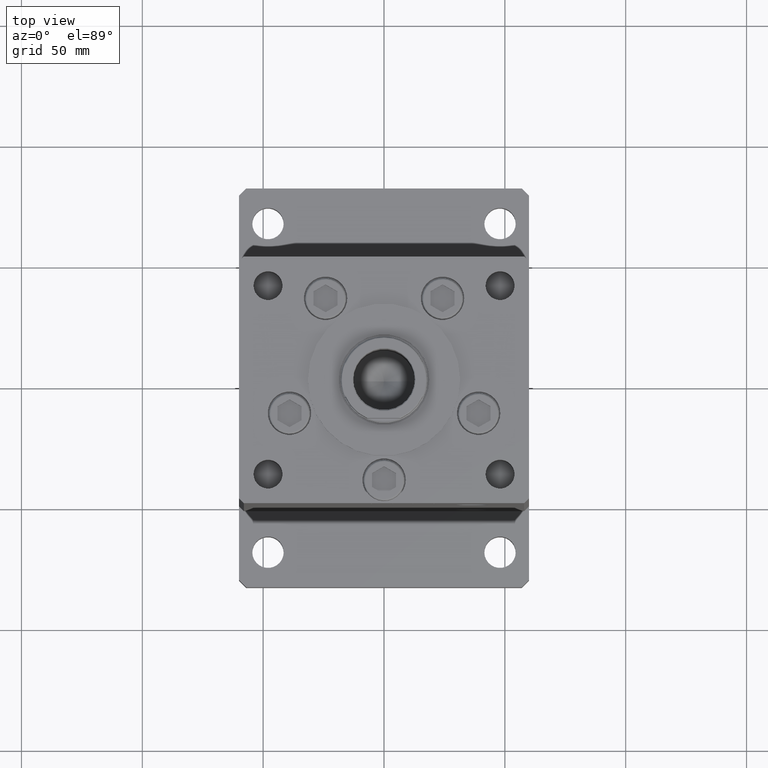
[diagram: clean part render]
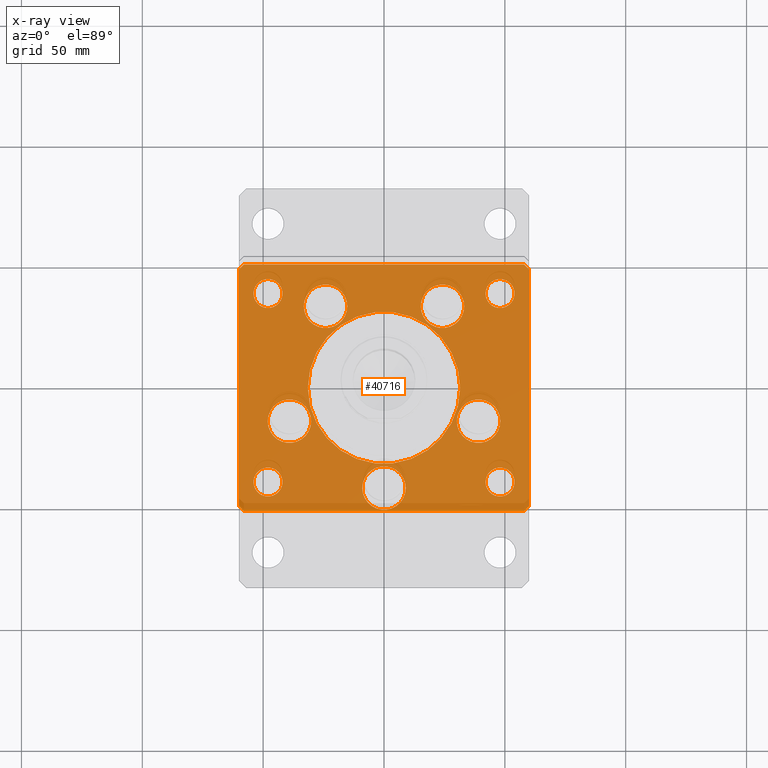
[diagram: x-ray — body ghosted, one internal face saturated and labeled with its STEP entity id]
A machine part, top view, then the same camera in x-ray: the body is ghosted and one INTERNAL B-rep face — a face not visible from any outside direction — is saturated and labeled: STEP entity #40716.
In plain terms, the highlighted planar face has unit normal (0, 0, -1).
Its self-contained STEP definition (entity closure, byte-faithful):
#104 = VERTEX_POINT ( 'NONE', #37410 ) ;
#158 = ORIENTED_EDGE ( 'NONE', *, *, #37085, .T. ) ;
#587 = FACE_BOUND ( 'NONE', #12778, .T. ) ;
#706 = LINE ( 'NONE', #16717, #48337 ) ;
#966 = DIRECTION ( 'NONE',  ( -1.000000000000000000, -2.392722035830079958E-16, 0.000000000000000000 ) ) ;
#1001 = CARTESIAN_POINT ( 'NONE',  ( 48.12657522565562829, -13.83333333333332682, 0.000000000000000000 ) ) ;
#1554 = CARTESIAN_POINT ( 'NONE',  ( 39.12657522565562829, -13.83333333333332860, 0.000000000000000000 ) ) ;
#1635 = FACE_BOUND ( 'NONE', #42883, .T. ) ;
#1720 = DIRECTION ( 'NONE',  ( 1.000000000000000000, 0.000000000000000000, 0.000000000000000000 ) ) ;
#2009 = DIRECTION ( 'NONE',  ( -0.000000000000000000, 0.000000000000000000, 1.000000000000000000 ) ) ;
#2040 = CIRCLE ( 'NONE', #48837, 9.000000000000001776 ) ;
#2055 = VERTEX_POINT ( 'NONE', #45909 ) ;
#2275 = DIRECTION ( 'NONE',  ( 0.000000000000000000, -0.000000000000000000, -1.000000000000000000 ) ) ;
#2346 = DIRECTION ( 'NONE',  ( 1.000000000000000000, 0.000000000000000000, 0.000000000000000000 ) ) ;
#2884 = DIRECTION ( 'NONE',  ( 1.000000000000000000, 0.000000000000000000, 0.000000000000000000 ) ) ;
#2919 = EDGE_CURVE ( 'NONE', #10217, #19971, #48376, .T. ) ;
#2977 = DIRECTION ( 'NONE',  ( 0.000000000000000000, -0.000000000000000000, -1.000000000000000000 ) ) ;
#3044 = AXIS2_PLACEMENT_3D ( 'NONE', #6355, #2009, #47843 ) ;
#3435 = CARTESIAN_POINT ( 'NONE',  ( 48.00000000000000000, -38.99999999999999289, 0.000000000000000000 ) ) ;
#3522 = CARTESIAN_POINT ( 'NONE',  ( -57.99999999999999289, 50.99999999999997868, 0.000000000000000000 ) ) ;
#3698 = ORIENTED_EDGE ( 'NONE', *, *, #43266, .T. ) ;
#3844 = EDGE_CURVE ( 'NONE', #43412, #26114, #13516, .T. ) ;
#3956 = EDGE_CURVE ( 'NONE', #53295, #31078, #7621, .T. ) ;
#4051 = EDGE_CURVE ( 'NONE', #38428, #28226, #33610, .T. ) ;
#4085 = EDGE_CURVE ( 'NONE', #11715, #43412, #706, .T. ) ;
#4119 = CARTESIAN_POINT ( 'NONE',  ( -60.00000000000000000, -49.00000000000000000, 0.000000000000000000 ) ) ;
#4159 = DIRECTION ( 'NONE',  ( 0.000000000000000000, 0.000000000000000000, 1.000000000000000000 ) ) ;
#4233 = LINE ( 'NONE', #20767, #6948 ) ;
#4964 = EDGE_CURVE ( 'NONE', #30408, #27799, #33653, .T. ) ;
#5125 = DIRECTION ( 'NONE',  ( 1.000000000000000000, 0.000000000000000000, 0.000000000000000000 ) ) ;
#5141 = AXIS2_PLACEMENT_3D ( 'NONE', #26683, #38634, #51670 ) ;
#5681 = VECTOR ( 'NONE', #35406, 1000.000000000000114 ) ;
#5780 = VERTEX_POINT ( 'NONE', #1001 ) ;
#5835 = CARTESIAN_POINT ( 'NONE',  ( 54.00000000000000711, -38.99999999999999289, 0.000000000000000000 ) ) ;
#6355 = CARTESIAN_POINT ( 'NONE',  ( 48.00000000000000000, 38.99999999999999289, 0.000000000000000000 ) ) ;
#6510 = FACE_BOUND ( 'NONE', #11869, .T. ) ;
#6948 = VECTOR ( 'NONE', #37294, 1000.000000000000000 ) ;
#6963 = DIRECTION ( 'NONE',  ( 0.000000000000000000, -0.000000000000000000, -1.000000000000000000 ) ) ;
#7223 = DIRECTION ( 'NONE',  ( -0.7071067811865487940, 0.7071067811865463515, 0.000000000000000000 ) ) ;
#7312 = DIRECTION ( 'NONE',  ( 0.000000000000000000, -0.000000000000000000, -1.000000000000000000 ) ) ;
#7321 = CIRCLE ( 'NONE', #15120, 9.000000000000000000 ) ;
#7389 = CIRCLE ( 'NONE', #52434, 6.000000000000005329 ) ;
#7511 = DIRECTION ( 'NONE',  ( 1.000000000000000000, 0.000000000000000000, 0.000000000000000000 ) ) ;
#7556 = ORIENTED_EDGE ( 'NONE', *, *, #39757, .T. ) ;
#7621 = CIRCLE ( 'NONE', #41387, 6.000000000000005329 ) ;
#7969 = DIRECTION ( 'NONE',  ( 1.000000000000000000, 1.196361017915039486E-16, 0.000000000000000000 ) ) ;
#8150 = ORIENTED_EDGE ( 'NONE', *, *, #4051, .T. ) ;
#8528 = VECTOR ( 'NONE', #38419, 1000.000000000000114 ) ;
#8619 = DIRECTION ( 'NONE',  ( -0.000000000000000000, 0.000000000000000000, 1.000000000000000000 ) ) ;
#8715 = ORIENTED_EDGE ( 'NONE', *, *, #52552, .F. ) ;
#8721 = ORIENTED_EDGE ( 'NONE', *, *, #14493, .T. ) ;
#8815 = CARTESIAN_POINT ( 'NONE',  ( -60.00000000000000000, 48.99999999999995737, 0.000000000000000000 ) ) ;
#8876 = CIRCLE ( 'NONE', #28728, 9.000000000000001776 ) ;
#8909 = ORIENTED_EDGE ( 'NONE', *, *, #27723, .T. ) ;
#8971 = CIRCLE ( 'NONE', #20216, 9.000000000000001776 ) ;
#9741 = EDGE_CURVE ( 'NONE', #11596, #37071, #41120, .T. ) ;
#10217 = VERTEX_POINT ( 'NONE', #18246 ) ;
#10309 = DIRECTION ( 'NONE',  ( 0.000000000000000000, -0.000000000000000000, -1.000000000000000000 ) ) ;
#10399 = ORIENTED_EDGE ( 'NONE', *, *, #14430, .T. ) ;
#10598 = CARTESIAN_POINT ( 'NONE',  ( 9.000000000000005329, -41.50000000000000000, 0.000000000000000000 ) ) ;
#10685 = CARTESIAN_POINT ( 'NONE',  ( 54.00000000000000711, 38.99999999999999289, 0.000000000000000000 ) ) ;
#10845 = VERTEX_POINT ( 'NONE', #19797 ) ;
#10985 = VERTEX_POINT ( 'NONE', #52281 ) ;
#11296 = CARTESIAN_POINT ( 'NONE',  ( 59.99999999999994316, 49.00000000000000000, 0.000000000000000000 ) ) ;
#11396 = FACE_BOUND ( 'NONE', #27846, .T. ) ;
#11596 = VERTEX_POINT ( 'NONE', #31169 ) ;
#11715 = VERTEX_POINT ( 'NONE', #46100 ) ;
#11869 = EDGE_LOOP ( 'NONE', ( #16860, #42032 ) ) ;
#12081 = VECTOR ( 'NONE', #19623, 1000.000000000000000 ) ;
#12718 = AXIS2_PLACEMENT_3D ( 'NONE', #34787, #42679, #38846 ) ;
#12778 = EDGE_LOOP ( 'NONE', ( #50511, #37159 ) ) ;
#13516 = LINE ( 'NONE', #30018, #8528 ) ;
#13698 = VERTEX_POINT ( 'NONE', #10598 ) ;
#13997 = AXIS2_PLACEMENT_3D ( 'NONE', #39681, #2275, #19093 ) ;
#14430 = EDGE_CURVE ( 'NONE', #10985, #19899, #36042, .T. ) ;
#14493 = EDGE_CURVE ( 'NONE', #5780, #2055, #41319, .T. ) ;
#14573 = AXIS2_PLACEMENT_3D ( 'NONE', #37597, #8619, #20264 ) ;
#14919 = PLANE ( 'NONE',  #15111 ) ;
#15111 = AXIS2_PLACEMENT_3D ( 'NONE', #39565, #18439, #51793 ) ;
#15120 = AXIS2_PLACEMENT_3D ( 'NONE', #41787, #29044, #41526 ) ;
#15218 = ORIENTED_EDGE ( 'NONE', *, *, #38747, .T. ) ;
#15239 = EDGE_CURVE ( 'NONE', #19971, #11715, #52232, .T. ) ;
#15324 = AXIS2_PLACEMENT_3D ( 'NONE', #22314, #18525, #1720 ) ;
#15442 = CARTESIAN_POINT ( 'NONE',  ( -54.00000000000000711, 39.00000000000000000, 0.000000000000000000 ) ) ;
#15517 = CIRCLE ( 'NONE', #37179, 31.50000000000000000 ) ;
#15643 = DIRECTION ( 'NONE',  ( 0.000000000000000000, -0.000000000000000000, -1.000000000000000000 ) ) ;
#16612 = ORIENTED_EDGE ( 'NONE', *, *, #2919, .T. ) ;
#16717 = CARTESIAN_POINT ( 'NONE',  ( 57.99999999999993605, 51.00000000000000711, 0.000000000000000000 ) ) ;
#16748 = EDGE_CURVE ( 'NONE', #22616, #45711, #28536, .T. ) ;
#16860 = ORIENTED_EDGE ( 'NONE', *, *, #3956, .T. ) ;
#17109 = VERTEX_POINT ( 'NONE', #49326 ) ;
#17152 = ORIENTED_EDGE ( 'NONE', *, *, #52335, .T. ) ;
#18180 = FACE_BOUND ( 'NONE', #38953, .T. ) ;
#18246 = CARTESIAN_POINT ( 'NONE',  ( 60.00000000000001421, -48.99999999999999289, 0.000000000000000000 ) ) ;
#18439 = DIRECTION ( 'NONE',  ( -0.000000000000000000, 0.000000000000000000, 1.000000000000000000 ) ) ;
#18525 = DIRECTION ( 'NONE',  ( 0.000000000000000000, -0.000000000000000000, -1.000000000000000000 ) ) ;
#18679 = EDGE_CURVE ( 'NONE', #10845, #28249, #34498, .T. ) ;
#19093 = DIRECTION ( 'NONE',  ( 1.000000000000000000, 0.000000000000000000, 0.000000000000000000 ) ) ;
#19261 = ORIENTED_EDGE ( 'NONE', *, *, #37754, .T. ) ;
#19623 = DIRECTION ( 'NONE',  ( -7.080503983578803823E-16, 1.000000000000000000, 0.000000000000000000 ) ) ;
#19797 = CARTESIAN_POINT ( 'NONE',  ( -31.50000000000000000, -1.002015039050029328E-14, 0.000000000000000000 ) ) ;
#19824 = ORIENTED_EDGE ( 'NONE', *, *, #49795, .T. ) ;
#19899 = VERTEX_POINT ( 'NONE', #50996 ) ;
#19971 = VERTEX_POINT ( 'NONE', #37701 ) ;
#20216 = AXIS2_PLACEMENT_3D ( 'NONE', #48533, #7312, #23817 ) ;
#20264 = DIRECTION ( 'NONE',  ( 1.000000000000000000, 0.000000000000000000, 0.000000000000000000 ) ) ;
#20522 = DIRECTION ( 'NONE',  ( 0.7071067811865474617, 0.7071067811865474617, 0.000000000000000000 ) ) ;
#20611 = AXIS2_PLACEMENT_3D ( 'NONE', #52792, #15643, #48728 ) ;
#20619 = EDGE_CURVE ( 'NONE', #28249, #10845, #15517, .T. ) ;
#20694 = DIRECTION ( 'NONE',  ( 1.000000000000000000, 0.000000000000000000, 0.000000000000000000 ) ) ;
#20767 = CARTESIAN_POINT ( 'NONE',  ( -60.00000000000000000, 48.99999999999995737, 0.000000000000000000 ) ) ;
#20921 = CIRCLE ( 'NONE', #13997, 9.000000000000000000 ) ;
#20979 = DIRECTION ( 'NONE',  ( 0.000000000000000000, 0.000000000000000000, 1.000000000000000000 ) ) ;
#21027 = DIRECTION ( 'NONE',  ( 1.000000000000000000, 0.000000000000000000, 0.000000000000000000 ) ) ;
#21602 = EDGE_CURVE ( 'NONE', #37071, #11596, #49322, .T. ) ;
#22157 = DIRECTION ( 'NONE',  ( 0.000000000000000000, -0.000000000000000000, -1.000000000000000000 ) ) ;
#22314 = CARTESIAN_POINT ( 'NONE',  ( 39.12657522565562829, -13.83333333333332860, 0.000000000000000000 ) ) ;
#22616 = VERTEX_POINT ( 'NONE', #49495 ) ;
#22684 = CARTESIAN_POINT ( 'NONE',  ( 5.082284216461515748E-15, -41.50000000000000000, 0.000000000000000000 ) ) ;
#22891 = CIRCLE ( 'NONE', #32430, 6.000000000000005329 ) ;
#23024 = FACE_BOUND ( 'NONE', #31315, .T. ) ;
#23360 = DIRECTION ( 'NONE',  ( 1.000000000000000000, 0.000000000000000000, 0.000000000000000000 ) ) ;
#23817 = DIRECTION ( 'NONE',  ( 1.000000000000000000, 0.000000000000000000, 0.000000000000000000 ) ) ;
#23893 = CARTESIAN_POINT ( 'NONE',  ( -39.12657522565562829, -13.83333333333333925, 0.000000000000000000 ) ) ;
#23999 = ORIENTED_EDGE ( 'NONE', *, *, #31112, .T. ) ;
#24145 = ORIENTED_EDGE ( 'NONE', *, *, #16748, .T. ) ;
#24285 = DIRECTION ( 'NONE',  ( 0.000000000000000000, -0.000000000000000000, -1.000000000000000000 ) ) ;
#24508 = AXIS2_PLACEMENT_3D ( 'NONE', #1554, #22157, #2346 ) ;
#24629 = ORIENTED_EDGE ( 'NONE', *, *, #9741, .F. ) ;
#25552 = AXIS2_PLACEMENT_3D ( 'NONE', #46780, #37822, #21027 ) ;
#25604 = CARTESIAN_POINT ( 'NONE',  ( 41.99999999999999289, 38.99999999999999289, 0.000000000000000000 ) ) ;
#26114 = VERTEX_POINT ( 'NONE', #8815 ) ;
#26221 = AXIS2_PLACEMENT_3D ( 'NONE', #49079, #2977, #44727 ) ;
#26550 = DIRECTION ( 'NONE',  ( 1.000000000000000000, 0.000000000000000000, 0.000000000000000000 ) ) ;
#26683 = CARTESIAN_POINT ( 'NONE',  ( -48.00000000000000000, 39.00000000000000000, 0.000000000000000000 ) ) ;
#27077 = FACE_BOUND ( 'NONE', #51245, .T. ) ;
#27140 = CIRCLE ( 'NONE', #52270, 9.000000000000000000 ) ;
#27551 = DIRECTION ( 'NONE',  ( 0.000000000000000000, -0.000000000000000000, -1.000000000000000000 ) ) ;
#27723 = EDGE_CURVE ( 'NONE', #26114, #43163, #4233, .T. ) ;
#27799 = VERTEX_POINT ( 'NONE', #25604 ) ;
#27846 = EDGE_LOOP ( 'NONE', ( #24629, #52636 ) ) ;
#27932 = ORIENTED_EDGE ( 'NONE', *, *, #52267, .T. ) ;
#27990 = CARTESIAN_POINT ( 'NONE',  ( -57.99999999999997868, -51.00000000000001421, 0.000000000000000000 ) ) ;
#28226 = VERTEX_POINT ( 'NONE', #30078 ) ;
#28249 = VERTEX_POINT ( 'NONE', #43896 ) ;
#28286 = CARTESIAN_POINT ( 'NONE',  ( -48.12657522565562829, -13.83333333333333925, 0.000000000000000000 ) ) ;
#28293 = CARTESIAN_POINT ( 'NONE',  ( -15.19288941894912170, 33.71875000000000000, 0.000000000000000000 ) ) ;
#28536 = LINE ( 'NONE', #27990, #40446 ) ;
#28728 = AXIS2_PLACEMENT_3D ( 'NONE', #43916, #10309, #26550 ) ;
#29044 = DIRECTION ( 'NONE',  ( 0.000000000000000000, -0.000000000000000000, -1.000000000000000000 ) ) ;
#30018 = CARTESIAN_POINT ( 'NONE',  ( -57.99999999999999289, 50.99999999999997868, 0.000000000000000000 ) ) ;
#30039 = DIRECTION ( 'NONE',  ( 0.000000000000000000, -0.000000000000000000, -1.000000000000000000 ) ) ;
#30078 = CARTESIAN_POINT ( 'NONE',  ( -33.19288941894912170, 33.71875000000000000, 0.000000000000000000 ) ) ;
#30408 = VERTEX_POINT ( 'NONE', #10685 ) ;
#30638 = VECTOR ( 'NONE', #20522, 1000.000000000000114 ) ;
#31078 = VERTEX_POINT ( 'NONE', #47844 ) ;
#31112 = EDGE_CURVE ( 'NONE', #28226, #38428, #20921, .T. ) ;
#31169 = CARTESIAN_POINT ( 'NONE',  ( -41.99999999999999289, 39.00000000000000000, 0.000000000000000000 ) ) ;
#31315 = EDGE_LOOP ( 'NONE', ( #158, #53196 ) ) ;
#31700 = FACE_BOUND ( 'NONE', #34817, .T. ) ;
#32430 = AXIS2_PLACEMENT_3D ( 'NONE', #42793, #30039, #5125 ) ;
#33345 = CIRCLE ( 'NONE', #3044, 6.000000000000005329 ) ;
#33610 = CIRCLE ( 'NONE', #20611, 9.000000000000000000 ) ;
#33653 = CIRCLE ( 'NONE', #14573, 6.000000000000005329 ) ;
#34498 = CIRCLE ( 'NONE', #35337, 31.50000000000000000 ) ;
#34733 = ORIENTED_EDGE ( 'NONE', *, *, #4964, .F. ) ;
#34748 = CARTESIAN_POINT ( 'NONE',  ( 58.00000000000000000, -51.00000000000000711, 0.000000000000000000 ) ) ;
#34787 = CARTESIAN_POINT ( 'NONE',  ( 24.19288941894911460, 33.71875000000000711, 0.000000000000000000 ) ) ;
#34817 = EDGE_LOOP ( 'NONE', ( #19824, #15218 ) ) ;
#35337 = AXIS2_PLACEMENT_3D ( 'NONE', #44287, #4159, #20694 ) ;
#35351 = CARTESIAN_POINT ( 'NONE',  ( -30.12657522565562829, -13.83333333333333748, 0.000000000000000000 ) ) ;
#35406 = DIRECTION ( 'NONE',  ( 0.7071067811865474617, -0.7071067811865474617, 0.000000000000000000 ) ) ;
#36042 = CIRCLE ( 'NONE', #12718, 9.000000000000001776 ) ;
#36432 = DIRECTION ( 'NONE',  ( 1.000000000000000000, 0.000000000000000000, 0.000000000000000000 ) ) ;
#36801 = EDGE_LOOP ( 'NONE', ( #17152, #24145, #7556, #16612, #46709, #37201, #44450, #8909 ) ) ;
#37071 = VERTEX_POINT ( 'NONE', #15442 ) ;
#37085 = EDGE_CURVE ( 'NONE', #46580, #47640, #8971, .T. ) ;
#37159 = ORIENTED_EDGE ( 'NONE', *, *, #18679, .F. ) ;
#37179 = AXIS2_PLACEMENT_3D ( 'NONE', #49206, #20979, #36432 ) ;
#37201 = ORIENTED_EDGE ( 'NONE', *, *, #4085, .T. ) ;
#37294 = DIRECTION ( 'NONE',  ( 0.000000000000000000, -1.000000000000000000, 0.000000000000000000 ) ) ;
#37410 = CARTESIAN_POINT ( 'NONE',  ( -41.99999999999999289, -39.00000000000000000, 0.000000000000000000 ) ) ;
#37597 = CARTESIAN_POINT ( 'NONE',  ( 48.00000000000000000, 38.99999999999999289, 0.000000000000000000 ) ) ;
#37701 = CARTESIAN_POINT ( 'NONE',  ( 59.99999999999994316, 49.00000000000000000, 0.000000000000000000 ) ) ;
#37754 = EDGE_CURVE ( 'NONE', #17109, #104, #45312, .T. ) ;
#37822 = DIRECTION ( 'NONE',  ( -0.000000000000000000, 0.000000000000000000, 1.000000000000000000 ) ) ;
#38419 = DIRECTION ( 'NONE',  ( -0.7071067811865451302, -0.7071067811865500152, 0.000000000000000000 ) ) ;
#38428 = VERTEX_POINT ( 'NONE', #28293 ) ;
#38597 = EDGE_CURVE ( 'NONE', #47640, #46580, #2040, .T. ) ;
#38634 = DIRECTION ( 'NONE',  ( -0.000000000000000000, 0.000000000000000000, 1.000000000000000000 ) ) ;
#38747 = EDGE_CURVE ( 'NONE', #13698, #45437, #27140, .T. ) ;
#38846 = DIRECTION ( 'NONE',  ( 1.000000000000000000, 0.000000000000000000, 0.000000000000000000 ) ) ;
#38953 = EDGE_LOOP ( 'NONE', ( #3698, #10399 ) ) ;
#39565 = CARTESIAN_POINT ( 'NONE',  ( 0.000000000000000000, 0.000000000000000000, 0.000000000000000000 ) ) ;
#39681 = CARTESIAN_POINT ( 'NONE',  ( -24.19288941894912170, 33.71875000000000000, 0.000000000000000000 ) ) ;
#39757 = EDGE_CURVE ( 'NONE', #45711, #10217, #48744, .T. ) ;
#39900 = DIRECTION ( 'NONE',  ( 0.000000000000000000, -0.000000000000000000, -1.000000000000000000 ) ) ;
#40446 = VECTOR ( 'NONE', #7969, 1000.000000000000000 ) ;
#40716 = ADVANCED_FACE ( 'NONE', ( #587, #1635, #18180, #43645, #31700, #23024, #27077, #6510, #11396, #52609, #48552 ), #14919, .T. ) ;
#40915 = EDGE_CURVE ( 'NONE', #31078, #53295, #22891, .T. ) ;
#41120 = CIRCLE ( 'NONE', #25552, 6.000000000000005329 ) ;
#41319 = CIRCLE ( 'NONE', #15324, 9.000000000000001776 ) ;
#41387 = AXIS2_PLACEMENT_3D ( 'NONE', #3435, #24285, #7511 ) ;
#41526 = DIRECTION ( 'NONE',  ( 1.000000000000000000, 0.000000000000000000, 0.000000000000000000 ) ) ;
#41787 = CARTESIAN_POINT ( 'NONE',  ( 5.082284216461515748E-15, -41.50000000000000000, 0.000000000000000000 ) ) ;
#42032 = ORIENTED_EDGE ( 'NONE', *, *, #40915, .T. ) ;
#42458 = EDGE_LOOP ( 'NONE', ( #27932, #19261 ) ) ;
#42679 = DIRECTION ( 'NONE',  ( 0.000000000000000000, -0.000000000000000000, -1.000000000000000000 ) ) ;
#42793 = CARTESIAN_POINT ( 'NONE',  ( 48.00000000000000000, -38.99999999999999289, 0.000000000000000000 ) ) ;
#42883 = EDGE_LOOP ( 'NONE', ( #23999, #8150 ) ) ;
#43163 = VERTEX_POINT ( 'NONE', #4119 ) ;
#43266 = EDGE_CURVE ( 'NONE', #19899, #10985, #8876, .T. ) ;
#43412 = VERTEX_POINT ( 'NONE', #3522 ) ;
#43558 = ORIENTED_EDGE ( 'NONE', *, *, #46279, .T. ) ;
#43645 = FACE_BOUND ( 'NONE', #49304, .T. ) ;
#43896 = CARTESIAN_POINT ( 'NONE',  ( 31.50000000000000000, -1.387778780781445676E-14, 0.000000000000000000 ) ) ;
#43916 = CARTESIAN_POINT ( 'NONE',  ( 24.19288941894911460, 33.71875000000000711, 0.000000000000000000 ) ) ;
#44122 = DIRECTION ( 'NONE',  ( 1.000000000000000000, 0.000000000000000000, 0.000000000000000000 ) ) ;
#44287 = CARTESIAN_POINT ( 'NONE',  ( 0.000000000000000000, -1.387778780781445676E-14, 0.000000000000000000 ) ) ;
#44450 = ORIENTED_EDGE ( 'NONE', *, *, #3844, .T. ) ;
#44727 = DIRECTION ( 'NONE',  ( 1.000000000000000000, 0.000000000000000000, 0.000000000000000000 ) ) ;
#45312 = CIRCLE ( 'NONE', #26221, 6.000000000000005329 ) ;
#45437 = VERTEX_POINT ( 'NONE', #49327 ) ;
#45711 = VERTEX_POINT ( 'NONE', #34748 ) ;
#45909 = CARTESIAN_POINT ( 'NONE',  ( 30.12657522565562829, -13.83333333333332860, 0.000000000000000000 ) ) ;
#46100 = CARTESIAN_POINT ( 'NONE',  ( 57.99999999999993605, 51.00000000000000711, 0.000000000000000000 ) ) ;
#46279 = EDGE_CURVE ( 'NONE', #2055, #5780, #51350, .T. ) ;
#46580 = VERTEX_POINT ( 'NONE', #28286 ) ;
#46709 = ORIENTED_EDGE ( 'NONE', *, *, #15239, .T. ) ;
#46780 = CARTESIAN_POINT ( 'NONE',  ( -48.00000000000000000, 39.00000000000000000, 0.000000000000000000 ) ) ;
#47366 = VECTOR ( 'NONE', #7223, 1000.000000000000000 ) ;
#47640 = VERTEX_POINT ( 'NONE', #35351 ) ;
#47843 = DIRECTION ( 'NONE',  ( 1.000000000000000000, 0.000000000000000000, 0.000000000000000000 ) ) ;
#47844 = CARTESIAN_POINT ( 'NONE',  ( 41.99999999999999289, -38.99999999999999289, 0.000000000000000000 ) ) ;
#47903 = CARTESIAN_POINT ( 'NONE',  ( -60.00000000000000000, -49.00000000000000000, 0.000000000000000000 ) ) ;
#48337 = VECTOR ( 'NONE', #966, 1000.000000000000000 ) ;
#48376 = LINE ( 'NONE', #48919, #12081 ) ;
#48533 = CARTESIAN_POINT ( 'NONE',  ( -39.12657522565562829, -13.83333333333333925, 0.000000000000000000 ) ) ;
#48552 = FACE_BOUND ( 'NONE', #42458, .T. ) ;
#48721 = CARTESIAN_POINT ( 'NONE',  ( -48.00000000000000000, -39.00000000000000000, 0.000000000000000000 ) ) ;
#48728 = DIRECTION ( 'NONE',  ( 1.000000000000000000, 0.000000000000000000, 0.000000000000000000 ) ) ;
#48744 = LINE ( 'NONE', #50092, #30638 ) ;
#48837 = AXIS2_PLACEMENT_3D ( 'NONE', #23893, #39900, #23360 ) ;
#48919 = CARTESIAN_POINT ( 'NONE',  ( 60.00000000000001421, -48.99999999999999289, 0.000000000000000000 ) ) ;
#49079 = CARTESIAN_POINT ( 'NONE',  ( -48.00000000000000000, -39.00000000000000000, 0.000000000000000000 ) ) ;
#49206 = CARTESIAN_POINT ( 'NONE',  ( 0.000000000000000000, -1.387778780781445676E-14, 0.000000000000000000 ) ) ;
#49304 = EDGE_LOOP ( 'NONE', ( #43558, #8721 ) ) ;
#49322 = CIRCLE ( 'NONE', #5141, 6.000000000000005329 ) ;
#49326 = CARTESIAN_POINT ( 'NONE',  ( -54.00000000000000711, -39.00000000000000000, 0.000000000000000000 ) ) ;
#49327 = CARTESIAN_POINT ( 'NONE',  ( -8.999999999999994671, -41.50000000000000000, 0.000000000000000000 ) ) ;
#49495 = CARTESIAN_POINT ( 'NONE',  ( -57.99999999999997868, -51.00000000000001421, 0.000000000000000000 ) ) ;
#49795 = EDGE_CURVE ( 'NONE', #45437, #13698, #7321, .T. ) ;
#50092 = CARTESIAN_POINT ( 'NONE',  ( 58.00000000000000000, -51.00000000000000711, 0.000000000000000000 ) ) ;
#50511 = ORIENTED_EDGE ( 'NONE', *, *, #20619, .F. ) ;
#50996 = CARTESIAN_POINT ( 'NONE',  ( 15.19288941894911105, 33.71875000000000711, 0.000000000000000000 ) ) ;
#51245 = EDGE_LOOP ( 'NONE', ( #34733, #8715 ) ) ;
#51350 = CIRCLE ( 'NONE', #24508, 9.000000000000001776 ) ;
#51670 = DIRECTION ( 'NONE',  ( 1.000000000000000000, 0.000000000000000000, 0.000000000000000000 ) ) ;
#51793 = DIRECTION ( 'NONE',  ( 1.000000000000000000, 0.000000000000000000, 0.000000000000000000 ) ) ;
#51970 = LINE ( 'NONE', #47903, #5681 ) ;
#52232 = LINE ( 'NONE', #11296, #47366 ) ;
#52267 = EDGE_CURVE ( 'NONE', #104, #17109, #7389, .T. ) ;
#52270 = AXIS2_PLACEMENT_3D ( 'NONE', #22684, #27551, #44122 ) ;
#52281 = CARTESIAN_POINT ( 'NONE',  ( 33.19288941894911460, 33.71875000000000711, 0.000000000000000000 ) ) ;
#52335 = EDGE_CURVE ( 'NONE', #43163, #22616, #51970, .T. ) ;
#52434 = AXIS2_PLACEMENT_3D ( 'NONE', #48721, #6963, #2884 ) ;
#52552 = EDGE_CURVE ( 'NONE', #27799, #30408, #33345, .T. ) ;
#52609 = FACE_OUTER_BOUND ( 'NONE', #36801, .T. ) ;
#52636 = ORIENTED_EDGE ( 'NONE', *, *, #21602, .F. ) ;
#52792 = CARTESIAN_POINT ( 'NONE',  ( -24.19288941894912170, 33.71875000000000000, 0.000000000000000000 ) ) ;
#53196 = ORIENTED_EDGE ( 'NONE', *, *, #38597, .T. ) ;
#53295 = VERTEX_POINT ( 'NONE', #5835 ) ;